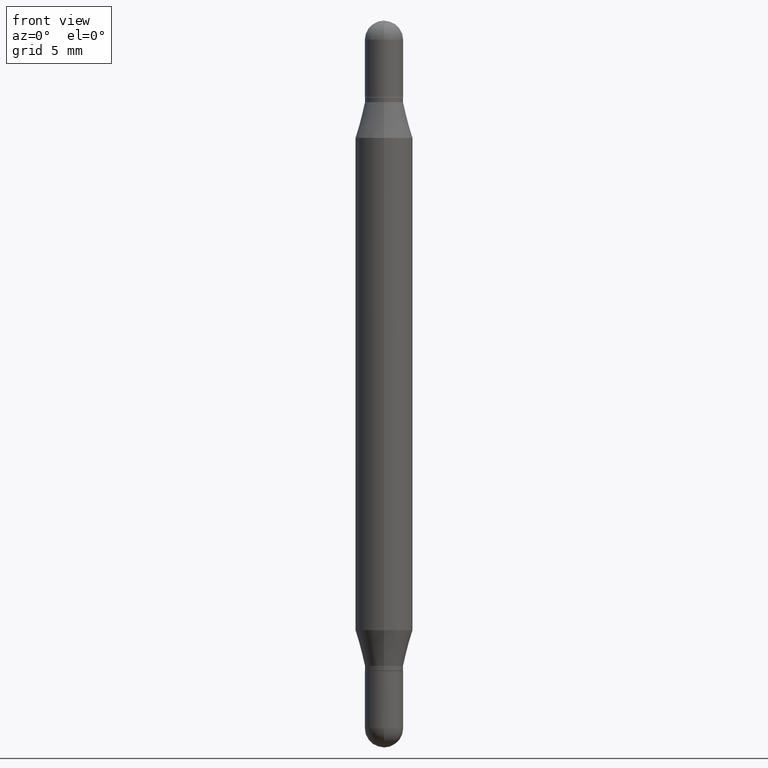
[diagram: clean part render]
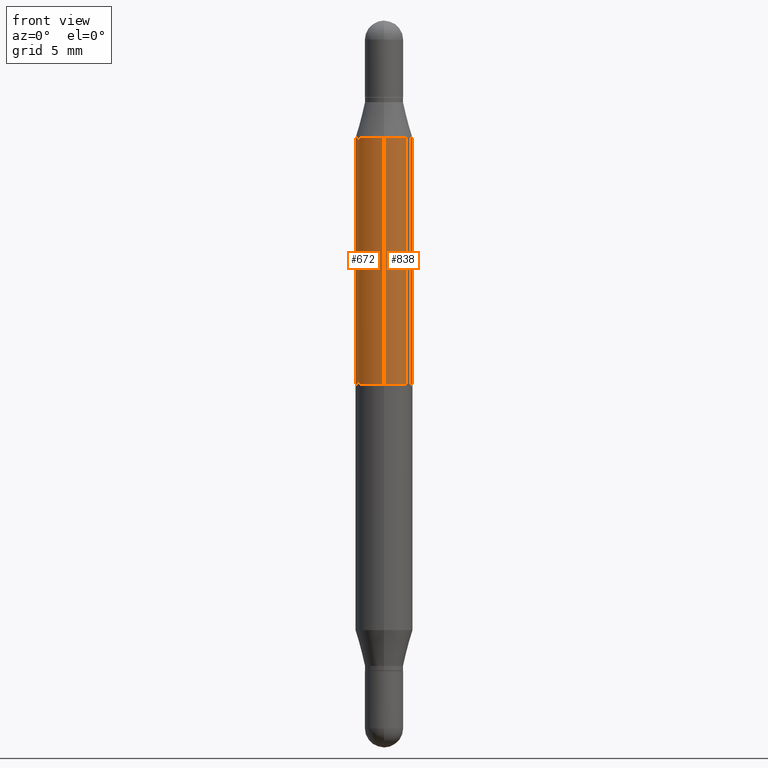
[diagram: same view with one multi-face feature highlighted, each face labeled with its STEP entity id]
A machine part, front view. The highlighted faces form ONE feature: a constant-radius fillet chain: 2 tangent blend faces with common blend radius 1.4999 mm. The faces share edges in the B-rep.
Their STEP definitions:
[1] entity #672 (Cylinder):
#53 = FACE_OUTER_BOUND ( 'NONE', #545, .T. ) ;
#140 = ORIENTED_EDGE ( 'NONE', *, *, #1098, .F. ) ;
#146 = DIRECTION ( 'NONE',  ( -6.982962677686265922E-15, -1.000000000000000000, 4.626330217890369336E-15 ) ) ;
#182 = CARTESIAN_POINT ( 'NONE',  ( 4.051124067684334215E-16, 0.05904999999999739624, -0.7480500000000002148 ) ) ;
#200 = VECTOR ( 'NONE', #671, 39.37007874015748143 ) ;
#245 = AXIS2_PLACEMENT_3D ( 'NONE', #862, #536, #932 ) ;
#246 = AXIS2_PLACEMENT_3D ( 'NONE', #1089, #310, #146 ) ;
#293 = DIRECTION ( 'NONE',  ( -6.982962677686265922E-15, -1.000000000000000000, 3.469747663417777397E-15 ) ) ;
#310 = DIRECTION ( 'NONE',  ( -2.445858326897780646E-29, -3.480172282808476455E-15, -1.000000000000000000 ) ) ;
#359 = DIRECTION ( 'NONE',  ( 2.445858326897780646E-29, 3.480172282808476455E-15, 1.000000000000000000 ) ) ;
#397 = ORIENTED_EDGE ( 'NONE', *, *, #931, .F. ) ;
#420 = CARTESIAN_POINT ( 'NONE',  ( -4.123439461173556424E-16, -0.05905000000000262123, -0.7480499999999996597 ) ) ;
#434 = CARTESIAN_POINT ( 'NONE',  ( 3.068521513334213693E-29, -8.485785503835664972E-16, -0.2415214009091068426 ) ) ;
#512 = ORIENTED_EDGE ( 'NONE', *, *, #560, .F. ) ;
#536 = DIRECTION ( 'NONE',  ( -0.000000000000000000, -3.485547902910486918E-15, -1.000000000000000000 ) ) ;
#545 = EDGE_LOOP ( 'NONE', ( #397, #1029, #512, #140 ) ) ;
#560 = EDGE_CURVE ( 'NONE', #911, #685, #599, .T. ) ;
#570 = EDGE_CURVE ( 'NONE', #946, #685, #836, .T. ) ;
#599 = CIRCLE ( 'NONE', #245, 0.05905000000000000526 ) ;
#605 = AXIS2_PLACEMENT_3D ( 'NONE', #434, #359, #293 ) ;
#671 = DIRECTION ( 'NONE',  ( -2.445858326897780926E-29, -3.480172282808476849E-15, -1.000000000000000000 ) ) ;
#672 = ADVANCED_FACE ( 'NONE', ( #53 ), #736, .T. ) ;
#685 = VERTEX_POINT ( 'NONE', #182 ) ;
#687 = CARTESIAN_POINT ( 'NONE',  ( 4.051124067684395845E-16, 0.05904999999999915178, -0.2415214009091070368 ) ) ;
#736 = CYLINDRICAL_SURFACE ( 'NONE', #246, 0.05905000000000000526 ) ;
#765 = CARTESIAN_POINT ( 'NONE',  ( -4.123439461173433657E-16, -0.05905000000000084487, -0.2415214009091066205 ) ) ;
#836 = LINE ( 'NONE', #915, #1025 ) ;
#862 = CARTESIAN_POINT ( 'NONE',  ( 1.829624321435884747E-29, -2.611385341389498878E-15, -0.7480499999999999927 ) ) ;
#866 = LINE ( 'NONE', #1114, #200 ) ;
#894 = VERTEX_POINT ( 'NONE', #765 ) ;
#911 = VERTEX_POINT ( 'NONE', #420 ) ;
#915 = CARTESIAN_POINT ( 'NONE',  ( 4.051124067684089175E-16, 0.05904999999999479415, -1.496100000000000207 ) ) ;
#931 = EDGE_CURVE ( 'NONE', #946, #894, #943, .T. ) ;
#932 = DIRECTION ( 'NONE',  ( 0.000000000000000000, 1.000000000000000000, -4.626330217890369336E-15 ) ) ;
#943 = CIRCLE ( 'NONE', #605, 0.05904999999999999832 ) ;
#946 = VERTEX_POINT ( 'NONE', #687 ) ;
#1004 = DIRECTION ( 'NONE',  ( -2.445858326897780926E-29, -3.480172282808476849E-15, -1.000000000000000000 ) ) ;
#1025 = VECTOR ( 'NONE', #1004, 39.37007874015748143 ) ;
#1029 = ORIENTED_EDGE ( 'NONE', *, *, #570, .T. ) ;
#1089 = CARTESIAN_POINT ( 'NONE',  ( 0.000000000000000000, -5.214728217544379106E-15, -1.496099999999999985 ) ) ;
#1098 = EDGE_CURVE ( 'NONE', #894, #911, #866, .T. ) ;
#1114 = CARTESIAN_POINT ( 'NONE',  ( -4.123439461173740327E-16, -0.05905000000000522331, -1.496099999999999541 ) ) ;
[2] entity #838 (Cylinder):
#19 = CARTESIAN_POINT ( 'NONE',  ( 3.068521513334213693E-29, -8.485785503835664972E-16, -0.2415214009091068426 ) ) ;
#130 = AXIS2_PLACEMENT_3D ( 'NONE', #19, #452, #1044 ) ;
#166 = FACE_OUTER_BOUND ( 'NONE', #205, .T. ) ;
#182 = CARTESIAN_POINT ( 'NONE',  ( 4.051124067684334215E-16, 0.05904999999999739624, -0.7480500000000002148 ) ) ;
#200 = VECTOR ( 'NONE', #671, 39.37007874015748143 ) ;
#205 = EDGE_LOOP ( 'NONE', ( #339, #822, #895, #948 ) ) ;
#294 = EDGE_CURVE ( 'NONE', #894, #946, #440, .T. ) ;
#339 = ORIENTED_EDGE ( 'NONE', *, *, #570, .F. ) ;
#346 = DIRECTION ( 'NONE',  ( -2.445858326897780646E-29, -3.480172282808476455E-15, -1.000000000000000000 ) ) ;
#420 = CARTESIAN_POINT ( 'NONE',  ( -4.123439461173556424E-16, -0.05905000000000262123, -0.7480499999999996597 ) ) ;
#422 = CYLINDRICAL_SURFACE ( 'NONE', #693, 0.05905000000000000526 ) ;
#440 = CIRCLE ( 'NONE', #130, 0.05904999999999999832 ) ;
#452 = DIRECTION ( 'NONE',  ( 2.445858326897780646E-29, 3.480172282808476455E-15, 1.000000000000000000 ) ) ;
#455 = DIRECTION ( 'NONE',  ( -0.000000000000000000, -3.485547902910486918E-15, -1.000000000000000000 ) ) ;
#472 = CARTESIAN_POINT ( 'NONE',  ( 1.829624321435884747E-29, -2.611385341389498878E-15, -0.7480499999999999927 ) ) ;
#480 = CIRCLE ( 'NONE', #581, 0.05905000000000000526 ) ;
#498 = DIRECTION ( 'NONE',  ( -6.982962677686265922E-15, -1.000000000000000000, 4.626330217890369336E-15 ) ) ;
#503 = EDGE_CURVE ( 'NONE', #685, #911, #480, .T. ) ;
#570 = EDGE_CURVE ( 'NONE', #946, #685, #836, .T. ) ;
#581 = AXIS2_PLACEMENT_3D ( 'NONE', #472, #455, #800 ) ;
#610 = CARTESIAN_POINT ( 'NONE',  ( 0.000000000000000000, -5.214728217544379106E-15, -1.496099999999999985 ) ) ;
#671 = DIRECTION ( 'NONE',  ( -2.445858326897780926E-29, -3.480172282808476849E-15, -1.000000000000000000 ) ) ;
#685 = VERTEX_POINT ( 'NONE', #182 ) ;
#687 = CARTESIAN_POINT ( 'NONE',  ( 4.051124067684395845E-16, 0.05904999999999915178, -0.2415214009091070368 ) ) ;
#693 = AXIS2_PLACEMENT_3D ( 'NONE', #610, #346, #498 ) ;
#765 = CARTESIAN_POINT ( 'NONE',  ( -4.123439461173433657E-16, -0.05905000000000084487, -0.2415214009091066205 ) ) ;
#800 = DIRECTION ( 'NONE',  ( 0.000000000000000000, 1.000000000000000000, -4.626330217890369336E-15 ) ) ;
#822 = ORIENTED_EDGE ( 'NONE', *, *, #294, .F. ) ;
#836 = LINE ( 'NONE', #915, #1025 ) ;
#838 = ADVANCED_FACE ( 'NONE', ( #166 ), #422, .T. ) ;
#866 = LINE ( 'NONE', #1114, #200 ) ;
#894 = VERTEX_POINT ( 'NONE', #765 ) ;
#895 = ORIENTED_EDGE ( 'NONE', *, *, #1098, .T. ) ;
#911 = VERTEX_POINT ( 'NONE', #420 ) ;
#915 = CARTESIAN_POINT ( 'NONE',  ( 4.051124067684089175E-16, 0.05904999999999479415, -1.496100000000000207 ) ) ;
#946 = VERTEX_POINT ( 'NONE', #687 ) ;
#948 = ORIENTED_EDGE ( 'NONE', *, *, #503, .F. ) ;
#1004 = DIRECTION ( 'NONE',  ( -2.445858326897780926E-29, -3.480172282808476849E-15, -1.000000000000000000 ) ) ;
#1025 = VECTOR ( 'NONE', #1004, 39.37007874015748143 ) ;
#1044 = DIRECTION ( 'NONE',  ( -6.982962677686265922E-15, -1.000000000000000000, 3.469747663417777397E-15 ) ) ;
#1098 = EDGE_CURVE ( 'NONE', #894, #911, #866, .T. ) ;
#1114 = CARTESIAN_POINT ( 'NONE',  ( -4.123439461173740327E-16, -0.05905000000000522331, -1.496099999999999541 ) ) ;